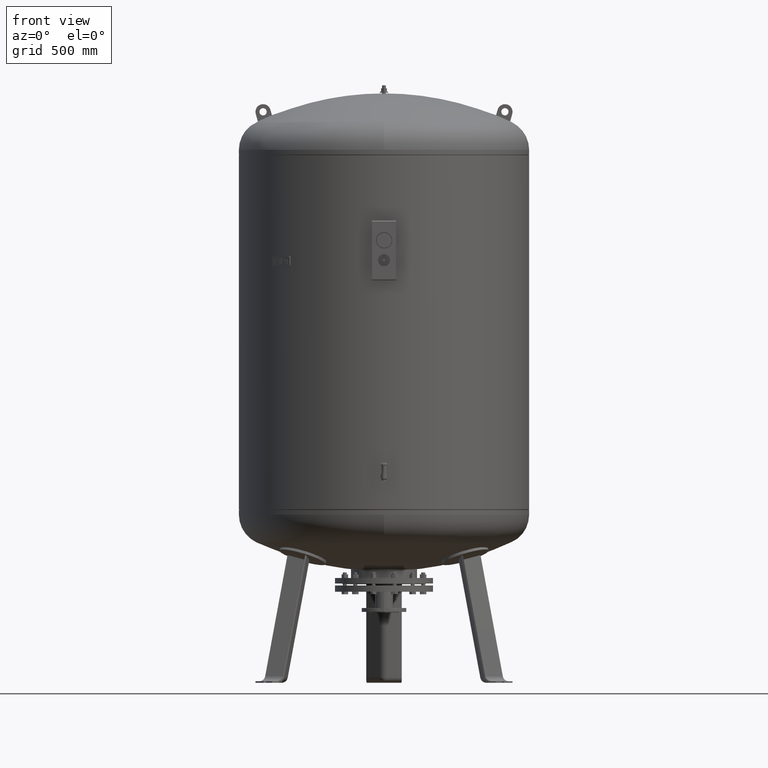
[diagram: clean part render]
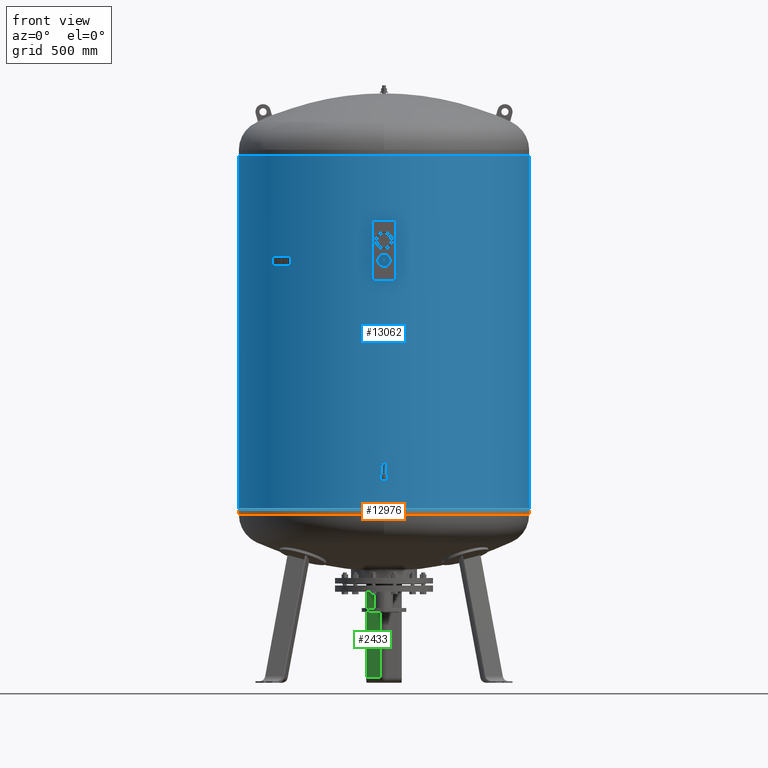
[diagram: same view with three faces highlighted in distinct colors, each labeled with its STEP entity id]
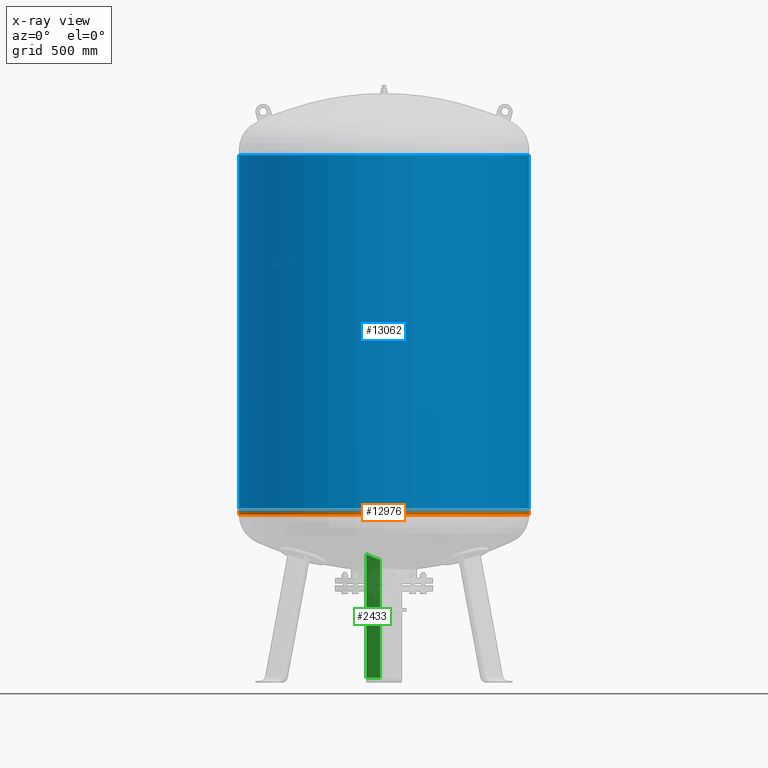
[diagram: x-ray of the same camera — body ghosted, the three highlighted faces saturated]
A machine part, front view with three faces highlighted in distinct colors.
The next image is the same camera in x-ray (body ghosted, the three faces saturated) — at least one of them is partly hidden behind the body in this view.
Their STEP definitions:

[orange] entity #12976 — the highlighted cylindrical surface (partial cylindrical patch) has radius 600 mm, axis along (-0, -0, 1).
#12824=CARTESIAN_POINT('',(-600.000000000000110,-4.684274E-014,714.0));
#12825=VERTEX_POINT('',#12824);
#12826=CARTESIAN_POINT('',(-600.0,-4.336858E-014,695.087542566272190));
#12827=VERTEX_POINT('',#12826);
#12828=CARTESIAN_POINT('',(-600.000000000000110,-4.684274E-014,714.0));
#12829=DIRECTION('',(0.0,0.0,-1.0));
#12830=VECTOR('',#12829,18.912457433727809);
#12831=LINE('',#12828,#12830);
#12832=EDGE_CURVE('',#12825,#12827,#12831,.T.);
#12834=CARTESIAN_POINT('',(599.999999999999890,2.663364E-014,714.000000000000110));
#12835=VERTEX_POINT('',#12834);
#12843=CARTESIAN_POINT('',(599.999999999999890,3.010780E-014,695.087542566272300));
#12844=VERTEX_POINT('',#12843);
#12845=CARTESIAN_POINT('',(599.999999999999890,2.663364E-014,714.000000000000110));
#12846=DIRECTION('',(0.0,0.0,-1.0));
#12847=VECTOR('',#12846,18.912457433727809);
#12848=LINE('',#12845,#12847);
#12849=EDGE_CURVE('',#12835,#12844,#12848,.T.);
#12875=CARTESIAN_POINT('',(-7.105427E-014,-600.0,695.087542566272190));
#12876=VERTEX_POINT('',#12875);
#12886=CARTESIAN_POINT('',(-3.551733E-014,-4.336858E-014,695.087542566272300));
#12887=DIRECTION('',(0.0,0.0,1.0));
#12888=DIRECTION('',(-1.0,0.0,0.0));
#12889=AXIS2_PLACEMENT_3D('',#12886,#12887,#12888);
#12890=CIRCLE('',#12889,600.0);
#12891=EDGE_CURVE('',#12827,#12876,#12890,.T.);
#12948=CARTESIAN_POINT('',(-3.551733E-014,-4.336858E-014,695.087542566272300));
#12949=DIRECTION('',(0.0,0.0,1.0));
#12950=DIRECTION('',(-1.0,0.0,0.0));
#12951=AXIS2_PLACEMENT_3D('',#12948,#12949,#12950);
#12952=CIRCLE('',#12951,600.0);
#12953=EDGE_CURVE('',#12876,#12844,#12952,.T.);
#12958=CARTESIAN_POINT('',(-3.693994E-014,-4.510566E-014,704.543771283136150));
#12959=DIRECTION('',(-1.504413E-016,-1.836970E-016,1.0));
#12960=DIRECTION('',(-1.0,0.0,0.0));
#12961=AXIS2_PLACEMENT_3D('',#12958,#12959,#12960);
#12962=CYLINDRICAL_SURFACE('',#12961,599.999999999999890);
#12963=ORIENTED_EDGE('',*,*,#12832,.T.);
#12964=ORIENTED_EDGE('',*,*,#12891,.T.);
#12965=ORIENTED_EDGE('',*,*,#12953,.T.);
#12966=ORIENTED_EDGE('',*,*,#12849,.F.);
#12967=CARTESIAN_POINT('',(-3.836254E-014,-4.684274E-014,714.0));
#12968=DIRECTION('',(0.0,0.0,1.0));
#12969=DIRECTION('',(-1.0,0.0,0.0));
#12970=AXIS2_PLACEMENT_3D('',#12967,#12968,#12969);
#12971=CIRCLE('',#12970,600.0);
#12972=EDGE_CURVE('',#12825,#12835,#12971,.T.);
#12973=ORIENTED_EDGE('',*,*,#12972,.F.);
#12974=EDGE_LOOP('',(#12963,#12964,#12965,#12966,#12973));
#12975=FACE_OUTER_BOUND('',#12974,.T.);
#12976=ADVANCED_FACE('',(#12975),#12962,.T.);

[blue] entity #13062 — the highlighted cylindrical surface (partial cylindrical patch) has radius 600 mm, axis along (0, 0, 1).
#12994=CARTESIAN_POINT('',(600.0,0.0,716.999999999999660));
#12995=VERTEX_POINT('',#12994);
#13004=CARTESIAN_POINT('',(-600.000000000000570,-7.347638E-014,716.999999999999550));
#13005=VERTEX_POINT('',#13004);
#13006=CARTESIAN_POINT('',(-1.661891E-014,0.0,716.999999999999550));
#13007=DIRECTION('',(0.0,0.0,1.0));
#13008=DIRECTION('',(1.0,0.0,0.0));
#13009=AXIS2_PLACEMENT_3D('',#13006,#13007,#13008);
#13010=CIRCLE('',#13009,600.0);
#13011=EDGE_CURVE('',#13005,#12995,#13010,.T.);
#13031=CARTESIAN_POINT('',(8.309455E-015,0.0,1800.0));
#13032=DIRECTION('',(2.301788E-017,0.0,1.0));
#13033=DIRECTION('',(1.0,0.0,0.0));
#13034=AXIS2_PLACEMENT_3D('',#13031,#13032,#13033);
#13035=CYLINDRICAL_SURFACE('',#13034,600.000000000000570);
#13036=CARTESIAN_POINT('',(600.000000000000800,0.0,2181.0));
#13037=VERTEX_POINT('',#13036);
#13038=CARTESIAN_POINT('',(600.000000000000800,0.0,2181.0));
#13039=DIRECTION('',(0.0,0.0,-1.0));
#13040=VECTOR('',#13039,1464.000000000000500);
#13041=LINE('',#13038,#13040);
#13042=EDGE_CURVE('',#13037,#12995,#13041,.T.);
#13043=ORIENTED_EDGE('',*,*,#13042,.F.);
#13044=CARTESIAN_POINT('',(-600.000000000000570,-7.347638E-014,2181.0));
#13045=VERTEX_POINT('',#13044);
#13046=CARTESIAN_POINT('',(1.661891E-014,0.0,2181.0));
#13047=DIRECTION('',(0.0,0.0,1.0));
#13048=DIRECTION('',(1.0,0.0,0.0));
#13049=AXIS2_PLACEMENT_3D('',#13046,#13047,#13048);
#13050=CIRCLE('',#13049,600.000000000000800);
#13051=EDGE_CURVE('',#13045,#13037,#13050,.T.);
#13052=ORIENTED_EDGE('',*,*,#13051,.F.);
#13053=CARTESIAN_POINT('',(-600.000000000000570,-7.347638E-014,2181.0));
#13054=DIRECTION('',(0.0,0.0,-1.0));
#13055=VECTOR('',#13054,1464.000000000000500);
#13056=LINE('',#13053,#13055);
#13057=EDGE_CURVE('',#13045,#13005,#13056,.T.);
#13058=ORIENTED_EDGE('',*,*,#13057,.T.);
#13059=ORIENTED_EDGE('',*,*,#13011,.T.);
#13060=EDGE_LOOP('',(#13043,#13052,#13058,#13059));
#13061=FACE_OUTER_BOUND('',#13060,.T.);
#13062=ADVANCED_FACE('',(#13061),#13035,.T.);

[green] entity #2433 — the highlighted planar face has unit normal (-0.6455, -0.7471, -0.1588).
#2142=CARTESIAN_POINT('',(-16.136450826554530,469.470961811045530,21.029948423057281));
#2143=VERTEX_POINT('',#2142);
#2216=CARTESIAN_POINT('',(-73.500000000000071,410.639984842271190,530.964625467244790));
#2217=VERTEX_POINT('',#2216);
#2225=CARTESIAN_POINT('',(-16.136450826554579,366.118966807270450,507.262855992482800));
#2226=VERTEX_POINT('',#2225);
#2227=CARTESIAN_POINT('',(-16.136450826554579,366.118966807270450,507.262855992482800));
#2228=CARTESIAN_POINT('',(-18.913416046005516,368.311641721589690,508.234229947279740));
#2229=CARTESIAN_POINT('',(-21.696926014053570,370.503142454935240,509.237729410370950));
#2230=CARTESIAN_POINT('',(-30.188304126259379,377.170898528650070,512.381986610263310));
#2231=CARTESIAN_POINT('',(-35.915460153680854,381.644042917188640,514.615776682244130));
#2232=CARTESIAN_POINT('',(-52.229069748678519,394.323812316031710,521.269541988922130));
#2233=CARTESIAN_POINT('',(-62.858036945115778,402.511835181547040,525.949831965369190));
#2234=CARTESIAN_POINT('',(-73.500000000000071,410.639984842271190,530.964625467244790));
#2235=B_SPLINE_CURVE_WITH_KNOTS('',3,(#2227,#2228,#2229,#2230,#2231,#2232,#2233,#2234),.UNSPECIFIED.,.F.,.U.,(4,2,2,4),(5.453253502265779,6.515864870681246,8.687819827574995,12.681292855444173),.UNSPECIFIED.);
#2236=EDGE_CURVE('',#2226,#2217,#2235,.T.);
#2391=CARTESIAN_POINT('',(-16.136450826554579,366.118966807270450,507.262855992482800));
#2392=DIRECTION('',(1.000572E-016,0.207911690817760,-0.978147600733805));
#2393=VECTOR('',#2392,497.095639967479310);
#2394=LINE('',#2391,#2393);
#2395=EDGE_CURVE('',#2226,#2143,#2394,.T.);
#2410=CARTESIAN_POINT('',(3.995830E-015,468.826896435301360,-41.527282742766886));
#2411=DIRECTION('',(-0.645458033062182,-0.747104967402682,-0.158802063077709));
#2412=DIRECTION('',(8.911644E-017,0.207911690817760,-0.978147600733806));
#2413=AXIS2_PLACEMENT_3D('',#2410,#2411,#2412);
#2414=PLANE('',#2413);
#2415=CARTESIAN_POINT('',(-73.500000000000014,519.029946471096990,21.029948423057284));
#2416=VERTEX_POINT('',#2415);
#2417=CARTESIAN_POINT('',(-73.500000000000014,519.029946471096990,21.029948423057284));
#2418=DIRECTION('',(-1.090360E-016,-0.207911690817760,0.978147600733806));
#2419=VECTOR('',#2418,521.326921071661220);
#2420=LINE('',#2417,#2419);
#2421=EDGE_CURVE('',#2416,#2217,#2420,.T.);
#2422=ORIENTED_EDGE('',*,*,#2421,.F.);
#2423=CARTESIAN_POINT('',(-16.136450826554530,469.470961811045530,21.029948423057281));
#2424=DIRECTION('',(-0.756707249513243,0.653753882232529,4.686537E-017));
#2425=VECTOR('',#2424,75.806792138366561);
#2426=LINE('',#2423,#2425);
#2427=EDGE_CURVE('',#2143,#2416,#2426,.T.);
#2428=ORIENTED_EDGE('',*,*,#2427,.F.);
#2429=ORIENTED_EDGE('',*,*,#2395,.F.);
#2430=ORIENTED_EDGE('',*,*,#2236,.T.);
#2431=EDGE_LOOP('',(#2422,#2428,#2429,#2430));
#2432=FACE_OUTER_BOUND('',#2431,.T.);
#2433=ADVANCED_FACE('',(#2432),#2414,.T.);